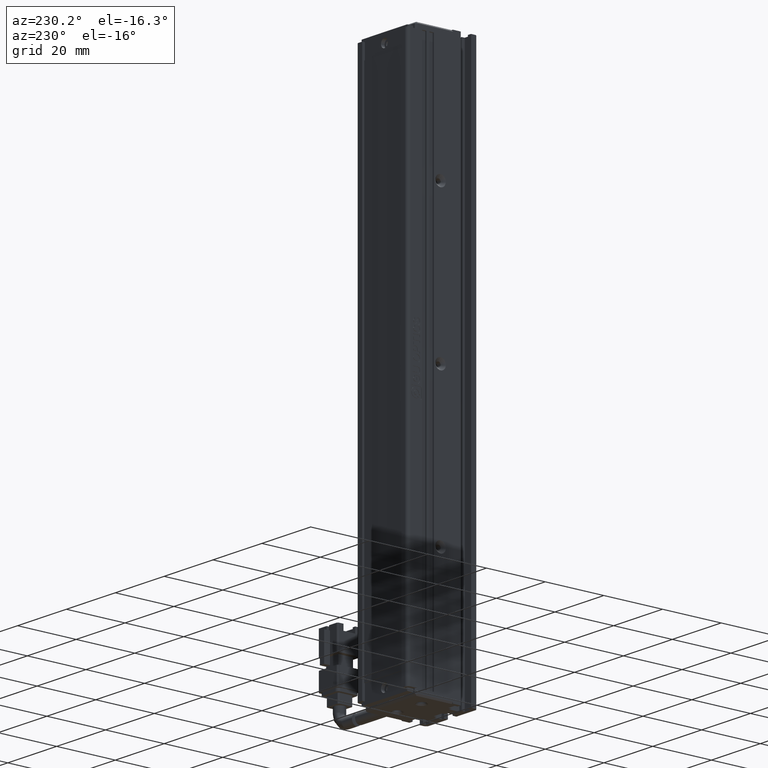
[diagram: clean part render]
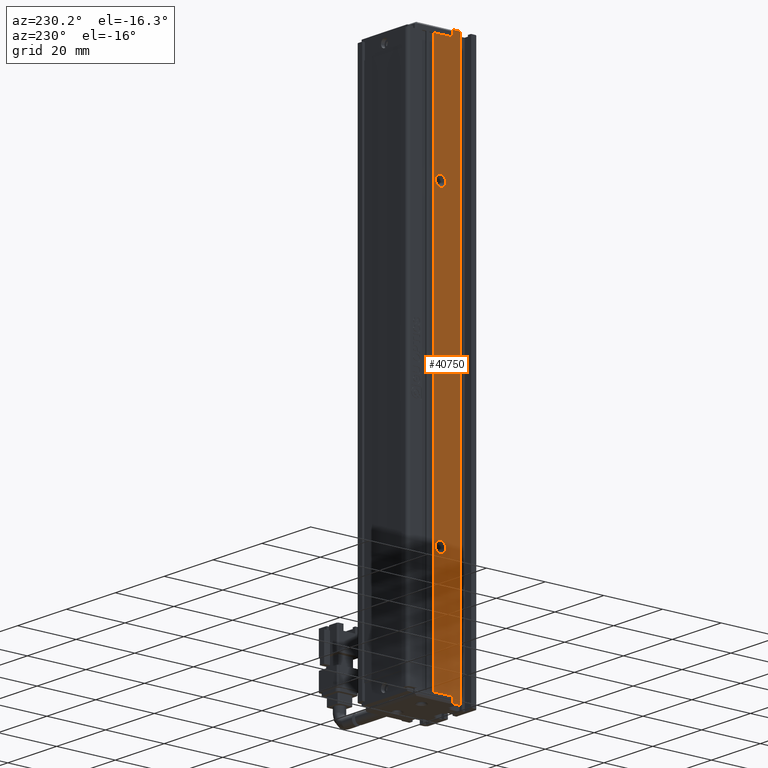
[diagram: same view with one face highlighted and labeled with its STEP entity id]
A machine part, auxiliary view. The second image highlights one B-rep face of the part: STEP entity #40750.
In plain terms, the highlighted planar face has unit normal (-1, 0, 0).
Its self-contained STEP definition (entity closure, byte-faithful):
#22 = ORIENTED_EDGE ( 'NONE', *, *, #47590, .T. ) ;
#325 = VECTOR ( 'NONE', #45996, 1000.000000000000000 ) ;
#687 = EDGE_CURVE ( 'NONE', #38022, #46764, #14041, .T. ) ;
#1094 = ORIENTED_EDGE ( 'NONE', *, *, #38172, .T. ) ;
#2303 = LINE ( 'NONE', #38933, #32199 ) ;
#2348 = LINE ( 'NONE', #32823, #6468 ) ;
#2357 = VERTEX_POINT ( 'NONE', #47252 ) ;
#3040 = EDGE_LOOP ( 'NONE', ( #11946, #18958 ) ) ;
#3202 = CIRCLE ( 'NONE', #48084, 1.800000000002910400 ) ;
#3360 = CARTESIAN_POINT ( 'NONE',  ( 30.42537974683542100, 25.99073232304837300, -205.0000000000000300 ) ) ;
#3382 = CARTESIAN_POINT ( 'NONE',  ( 30.42537974679950000, 23.69073232304837300, -65.00000000000000000 ) ) ;
#4019 = DIRECTION ( 'NONE',  ( 0.0000000000000000000, 0.0000000000000000000, 1.000000000000000000 ) ) ;
#4118 = EDGE_CURVE ( 'NONE', #2357, #35614, #37899, .T. ) ;
#4338 = DIRECTION ( 'NONE',  ( 1.000000000000000000, -0.0000000000000000000, -0.0000000000000000000 ) ) ;
#4612 = CARTESIAN_POINT ( 'NONE',  ( 30.42537974683542100, 16.79073232304837400, -22.99999999999999300 ) ) ;
#5408 = ORIENTED_EDGE ( 'NONE', *, *, #45591, .T. ) ;
#6468 = VECTOR ( 'NONE', #17942, 1000.000000000000000 ) ;
#6605 = CARTESIAN_POINT ( 'NONE',  ( 30.42537974683542100, 7.083797468354437600, -23.00000000000000700 ) ) ;
#6701 = DIRECTION ( 'NONE',  ( 0.0000000000000000000, 0.0000000000000000000, 1.000000000000000000 ) ) ;
#7225 = EDGE_LOOP ( 'NONE', ( #46241, #24897 ) ) ;
#7618 = ORIENTED_EDGE ( 'NONE', *, *, #40854, .T. ) ;
#7923 = ORIENTED_EDGE ( 'NONE', *, *, #44249, .T. ) ;
#8416 = CARTESIAN_POINT ( 'NONE',  ( 30.42537974683542100, 16.79073232304837400, -207.0000000000000300 ) ) ;
#8804 = CARTESIAN_POINT ( 'NONE',  ( 30.42537974679950000, 23.69073232304837300, -165.0000000000000000 ) ) ;
#8856 = DIRECTION ( 'NONE',  ( 1.000000000000000000, -0.0000000000000000000, -0.0000000000000000000 ) ) ;
#9040 = CARTESIAN_POINT ( 'NONE',  ( 30.42537974679950000, 23.69073232304837300, -163.2000000000084600 ) ) ;
#9115 = CARTESIAN_POINT ( 'NONE',  ( 30.42537974683542900, 19.49073232304837000, -205.0000000000000300 ) ) ;
#9654 = DIRECTION ( 'NONE',  ( 1.000000000000000000, -0.0000000000000000000, -0.0000000000000000000 ) ) ;
#9679 = EDGE_CURVE ( 'NONE', #21859, #21358, #16840, .T. ) ;
#10040 = DIRECTION ( 'NONE',  ( 0.0000000000000000000, -0.0000000000000000000, -1.000000000000000000 ) ) ;
#10220 = LINE ( 'NONE', #20677, #10750 ) ;
#10356 = DIRECTION ( 'NONE',  ( 0.0000000000000000000, 0.0000000000000000000, 1.000000000000000000 ) ) ;
#10413 = LINE ( 'NONE', #14299, #23280 ) ;
#10750 = VECTOR ( 'NONE', #32121, 1000.000000000000000 ) ;
#11668 = CARTESIAN_POINT ( 'NONE',  ( 30.42537974683542100, 7.083797468354437600, -23.00000000000000700 ) ) ;
#11946 = ORIENTED_EDGE ( 'NONE', *, *, #13051, .T. ) ;
#11972 = CARTESIAN_POINT ( 'NONE',  ( 30.42537974683542100, 7.083797468354437600, -205.0000000000000300 ) ) ;
#12045 = DIRECTION ( 'NONE',  ( 1.000000000000000000, -0.0000000000000000000, -0.0000000000000000000 ) ) ;
#12366 = VERTEX_POINT ( 'NONE', #4612 ) ;
#13051 = EDGE_CURVE ( 'NONE', #21358, #21859, #15758, .T. ) ;
#14041 = LINE ( 'NONE', #11972, #32755 ) ;
#14140 = ORIENTED_EDGE ( 'NONE', *, *, #37244, .T. ) ;
#14299 = CARTESIAN_POINT ( 'NONE',  ( 30.42537974683542100, 19.49073232304837000, -23.00000000000000700 ) ) ;
#15230 = CARTESIAN_POINT ( 'NONE',  ( 30.42537974683542100, 19.49073232304837000, -22.99999999999999300 ) ) ;
#15728 = FACE_BOUND ( 'NONE', #23941, .T. ) ;
#15733 = LINE ( 'NONE', #45956, #30359 ) ;
#15758 = CIRCLE ( 'NONE', #31730, 1.800000000014276400 ) ;
#15899 = AXIS2_PLACEMENT_3D ( 'NONE', #42438, #4338, #45534 ) ;
#16237 = AXIS2_PLACEMENT_3D ( 'NONE', #32066, #9654, #35851 ) ;
#16262 = VERTEX_POINT ( 'NONE', #15230 ) ;
#16840 = CIRCLE ( 'NONE', #27409, 1.800000000014276400 ) ;
#17742 = VERTEX_POINT ( 'NONE', #33067 ) ;
#17942 = DIRECTION ( 'NONE',  ( -0.0000000000000000000, -0.0000000000000000000, -1.000000000000000000 ) ) ;
#18958 = ORIENTED_EDGE ( 'NONE', *, *, #9679, .T. ) ;
#19287 = VERTEX_POINT ( 'NONE', #8416 ) ;
#19513 = CARTESIAN_POINT ( 'NONE',  ( 30.42537974679950000, 23.69073232304837300, -166.7999999999915700 ) ) ;
#19867 = AXIS2_PLACEMENT_3D ( 'NONE', #8804, #46399, #31217 ) ;
#20677 = CARTESIAN_POINT ( 'NONE',  ( 30.42537974683542100, 7.083797468354437600, -207.0000000000000300 ) ) ;
#20726 = VECTOR ( 'NONE', #46797, 1000.000000000000000 ) ;
#21070 = EDGE_CURVE ( 'NONE', #41796, #19287, #10220, .T. ) ;
#21080 = EDGE_CURVE ( 'NONE', #22992, #17742, #30671, .T. ) ;
#21358 = VERTEX_POINT ( 'NONE', #30123 ) ;
#21635 = ORIENTED_EDGE ( 'NONE', *, *, #21080, .T. ) ;
#21859 = VERTEX_POINT ( 'NONE', #41439 ) ;
#22992 = VERTEX_POINT ( 'NONE', #27932 ) ;
#23280 = VECTOR ( 'NONE', #10040, 1000.000000000000000 ) ;
#23322 = FACE_BOUND ( 'NONE', #3040, .T. ) ;
#23895 = DIRECTION ( 'NONE',  ( 0.0000000000000000000, 0.0000000000000000000, 1.000000000000000000 ) ) ;
#23941 = EDGE_LOOP ( 'NONE', ( #1094, #31177 ) ) ;
#24603 = CARTESIAN_POINT ( 'NONE',  ( 30.42537974683542900, 34.99073232304837700, -25.00000000000000700 ) ) ;
#24897 = ORIENTED_EDGE ( 'NONE', *, *, #28527, .T. ) ;
#24952 = PLANE ( 'NONE',  #32401 ) ;
#25295 = ORIENTED_EDGE ( 'NONE', *, *, #687, .T. ) ;
#25436 = DIRECTION ( 'NONE',  ( -1.000000000000000000, 0.0000000000000000000, 0.0000000000000000000 ) ) ;
#26457 = CARTESIAN_POINT ( 'NONE',  ( 30.42537974679950000, 23.69073232304837300, -65.00000000000000000 ) ) ;
#27409 = AXIS2_PLACEMENT_3D ( 'NONE', #26457, #12045, #4019 ) ;
#27932 = CARTESIAN_POINT ( 'NONE',  ( 30.42537974683542100, 19.49073232304837000, -24.99999999999999300 ) ) ;
#28527 = EDGE_CURVE ( 'NONE', #35614, #2357, #3202, .T. ) ;
#30123 = CARTESIAN_POINT ( 'NONE',  ( 30.42537974679950000, 23.69073232304837300, -63.19999999998572800 ) ) ;
#30189 = LINE ( 'NONE', #11668, #325 ) ;
#30359 = VECTOR ( 'NONE', #38446, 1000.000000000000000 ) ;
#30671 = LINE ( 'NONE', #24603, #20726 ) ;
#31177 = ORIENTED_EDGE ( 'NONE', *, *, #33366, .T. ) ;
#31217 = DIRECTION ( 'NONE',  ( 0.0000000000000000000, 0.0000000000000000000, 1.000000000000000000 ) ) ;
#31730 = AXIS2_PLACEMENT_3D ( 'NONE', #3382, #40987, #6701 ) ;
#31986 = ORIENTED_EDGE ( 'NONE', *, *, #21070, .T. ) ;
#32066 = CARTESIAN_POINT ( 'NONE',  ( 30.42537974691318700, 23.69073232304837300, -115.0000000000000000 ) ) ;
#32121 = DIRECTION ( 'NONE',  ( -0.0000000000000000000, -1.000000000000000000, 0.0000000000000000000 ) ) ;
#32199 = VECTOR ( 'NONE', #42659, 1000.000000000000000 ) ;
#32401 = AXIS2_PLACEMENT_3D ( 'NONE', #6605, #25436, #10356 ) ;
#32755 = VECTOR ( 'NONE', #39004, 1000.000000000000000 ) ;
#32823 = CARTESIAN_POINT ( 'NONE',  ( 30.42537974683542100, 25.99073232304837300, -23.00000000000000700 ) ) ;
#33067 = CARTESIAN_POINT ( 'NONE',  ( 30.42537974683542900, 25.99073232304837300, -24.99999999999999300 ) ) ;
#33366 = EDGE_CURVE ( 'NONE', #48357, #38746, #47237, .T. ) ;
#35019 = FACE_OUTER_BOUND ( 'NONE', #35877, .T. ) ;
#35339 = CARTESIAN_POINT ( 'NONE',  ( 30.42537974691318700, 23.69073232304837300, -116.8000000000029100 ) ) ;
#35614 = VERTEX_POINT ( 'NONE', #35339 ) ;
#35851 = DIRECTION ( 'NONE',  ( 0.0000000000000000000, 0.0000000000000000000, 1.000000000000000000 ) ) ;
#35877 = EDGE_LOOP ( 'NONE', ( #5408, #7618, #21635, #22, #25295, #7923, #31986, #14140 ) ) ;
#36033 = CIRCLE ( 'NONE', #15899, 1.799999999991558400 ) ;
#37244 = EDGE_CURVE ( 'NONE', #19287, #12366, #15733, .T. ) ;
#37899 = CIRCLE ( 'NONE', #16237, 1.800000000002910400 ) ;
#38022 = VERTEX_POINT ( 'NONE', #3360 ) ;
#38172 = EDGE_CURVE ( 'NONE', #38746, #48357, #36033, .T. ) ;
#38446 = DIRECTION ( 'NONE',  ( 0.0000000000000000000, 0.0000000000000000000, 1.000000000000000000 ) ) ;
#38746 = VERTEX_POINT ( 'NONE', #9040 ) ;
#38933 = CARTESIAN_POINT ( 'NONE',  ( 30.42537974683542900, 19.49073232304837000, -23.00000000000000700 ) ) ;
#38938 = CARTESIAN_POINT ( 'NONE',  ( 30.42537974691318700, 23.69073232304837300, -115.0000000000000000 ) ) ;
#39004 = DIRECTION ( 'NONE',  ( -0.0000000000000000000, -1.000000000000000000, 0.0000000000000000000 ) ) ;
#40750 = ADVANCED_FACE ( 'NONE', ( #35019, #45532, #23322, #15728 ), #24952, .T. ) ;
#40854 = EDGE_CURVE ( 'NONE', #16262, #22992, #10413, .T. ) ;
#40987 = DIRECTION ( 'NONE',  ( 1.000000000000000000, -0.0000000000000000000, -0.0000000000000000000 ) ) ;
#41439 = CARTESIAN_POINT ( 'NONE',  ( 30.42537974679950000, 23.69073232304837300, -66.80000000001427900 ) ) ;
#41796 = VERTEX_POINT ( 'NONE', #43436 ) ;
#42438 = CARTESIAN_POINT ( 'NONE',  ( 30.42537974679950000, 23.69073232304837300, -165.0000000000000000 ) ) ;
#42659 = DIRECTION ( 'NONE',  ( 0.0000000000000000000, -0.0000000000000000000, -1.000000000000000000 ) ) ;
#43436 = CARTESIAN_POINT ( 'NONE',  ( 30.42537974683542900, 19.49073232304837000, -207.0000000000000300 ) ) ;
#44249 = EDGE_CURVE ( 'NONE', #46764, #41796, #2303, .T. ) ;
#45532 = FACE_BOUND ( 'NONE', #7225, .T. ) ;
#45534 = DIRECTION ( 'NONE',  ( 0.0000000000000000000, 0.0000000000000000000, 1.000000000000000000 ) ) ;
#45591 = EDGE_CURVE ( 'NONE', #12366, #16262, #30189, .T. ) ;
#45956 = CARTESIAN_POINT ( 'NONE',  ( 30.42537974683542100, 16.79073232304837400, -23.00000000000000700 ) ) ;
#45996 = DIRECTION ( 'NONE',  ( 0.0000000000000000000, 1.000000000000000000, -0.0000000000000000000 ) ) ;
#46241 = ORIENTED_EDGE ( 'NONE', *, *, #4118, .T. ) ;
#46399 = DIRECTION ( 'NONE',  ( 1.000000000000000000, -0.0000000000000000000, -0.0000000000000000000 ) ) ;
#46764 = VERTEX_POINT ( 'NONE', #9115 ) ;
#46797 = DIRECTION ( 'NONE',  ( 0.0000000000000000000, 1.000000000000000000, 0.0000000000000000000 ) ) ;
#47237 = CIRCLE ( 'NONE', #19867, 1.799999999991558400 ) ;
#47252 = CARTESIAN_POINT ( 'NONE',  ( 30.42537974691318700, 23.69073232304837300, -113.1999999999970900 ) ) ;
#47590 = EDGE_CURVE ( 'NONE', #17742, #38022, #2348, .T. ) ;
#48084 = AXIS2_PLACEMENT_3D ( 'NONE', #38938, #8856, #23895 ) ;
#48357 = VERTEX_POINT ( 'NONE', #19513 ) ;